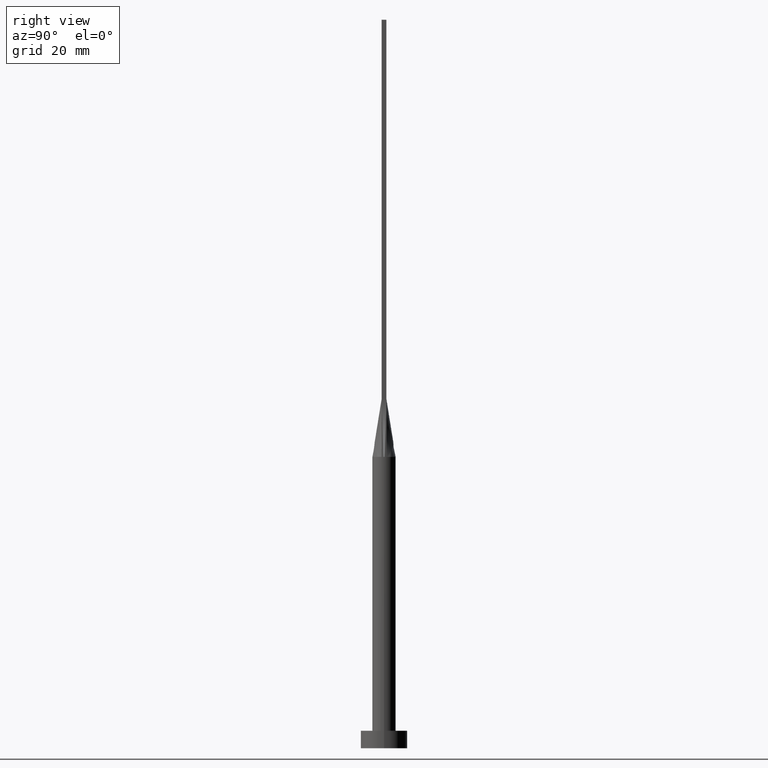
[diagram: clean part render]
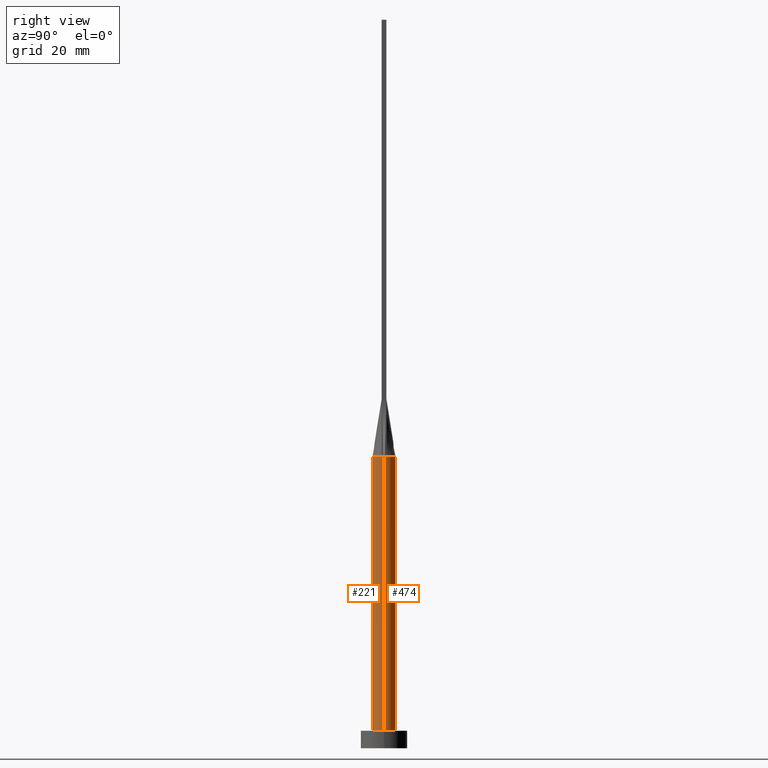
[diagram: same view with one multi-face feature highlighted, each face labeled with its STEP entity id]
A machine part, right view. The highlighted faces form ONE feature: a constant-radius fillet chain: 2 tangent blend faces with common blend radius 2 mm. The faces share edges in the B-rep.
Their STEP definitions:
[1] entity #474 (Cylinder):
#3 = CIRCLE ( 'NONE', #537, 2.000000000000000000 ) ;
#10 = CIRCLE ( 'NONE', #61, 2.000000000000000000 ) ;
#17 = ORIENTED_EDGE ( 'NONE', *, *, #291, .F. ) ;
#32 = CARTESIAN_POINT ( 'NONE',  ( -1.542259513637947999, 1.293837904363075442, 50.00000000000001421 ) ) ;
#33 = CARTESIAN_POINT ( 'NONE',  ( -1.669156890509896796, 1.119033439449084399, 50.00000000000000000 ) ) ;
#37 = CARTESIAN_POINT ( 'NONE',  ( 0.2657394870669761988, 1.999999999999999556, 50.00000000000000711 ) ) ;
#39 = CARTESIAN_POINT ( 'NONE',  ( 1.999683952654101260, 4.637163118916083254E-16, 50.00000000000000000 ) ) ;
#54 = CARTESIAN_POINT ( 'NONE',  ( 2.000000000000000000, 2.449293598294706414E-16, 3.000000000000000000 ) ) ;
#58 = VECTOR ( 'NONE', #288, 1000.000000000000000 ) ;
#61 = AXIS2_PLACEMENT_3D ( 'NONE', #220, #297, #218 ) ;
#66 = VERTEX_POINT ( 'NONE', #188 ) ;
#74 = AXIS2_PLACEMENT_3D ( 'NONE', #528, #128, #446 ) ;
#81 = CARTESIAN_POINT ( 'NONE',  ( 1.949877516600953875, 0.4456865912299994847, 50.00000000000000000 ) ) ;
#83 = CARTESIAN_POINT ( 'NONE',  ( 1.913513237607142647, 0.6040411209768705714, 50.00000000000000711 ) ) ;
#95 = CARTESIAN_POINT ( 'NONE',  ( -1.999683952654101704, -4.787247324473225831E-16, 50.00000000000000000 ) ) ;
#103 = ORIENTED_EDGE ( 'NONE', *, *, #561, .T. ) ;
#128 = DIRECTION ( 'NONE',  ( -0.000000000000000000, -0.000000000000000000, -1.000000000000000000 ) ) ;
#129 = CARTESIAN_POINT ( 'NONE',  ( 1.209404336647714073, 1.609323485403446830, 50.00000000000001421 ) ) ;
#142 = EDGE_CURVE ( 'NONE', #255, #66, #509, .T. ) ;
#153 = CARTESIAN_POINT ( 'NONE',  ( 2.000000000000000000, 2.449293598294706414E-16, 50.00000000000000000 ) ) ;
#173 = EDGE_LOOP ( 'NONE', ( #571, #103, #203, #417, #17, #333 ) ) ;
#188 = CARTESIAN_POINT ( 'NONE',  ( -2.000000000000000000, 0.000000000000000000, 3.000000000000000000 ) ) ;
#201 = VERTEX_POINT ( 'NONE', #54 ) ;
#203 = ORIENTED_EDGE ( 'NONE', *, *, #349, .T. ) ;
#213 = CARTESIAN_POINT ( 'NONE',  ( -1.854458107241758746, 0.7741483657718513101, 50.00000000000000711 ) ) ;
#218 = DIRECTION ( 'NONE',  ( 1.000000000000000000, 0.000000000000000000, 0.000000000000000000 ) ) ;
#219 = DIRECTION ( 'NONE',  ( 1.000000000000000000, 0.000000000000000000, 0.000000000000000000 ) ) ;
#220 = CARTESIAN_POINT ( 'NONE',  ( 0.000000000000000000, 0.000000000000000000, 3.000000000000000000 ) ) ;
#250 = CARTESIAN_POINT ( 'NONE',  ( -2.000000000000000000, 0.000000000000000000, 50.00000000000000000 ) ) ;
#255 = VERTEX_POINT ( 'NONE', #95 ) ;
#258 = CYLINDRICAL_SURFACE ( 'NONE', #74, 2.000000000000000000 ) ;
#262 = CARTESIAN_POINT ( 'NONE',  ( -1.002818635501954381, 1.749193953526918532, 50.00000000000001421 ) ) ;
#264 = LINE ( 'NONE', #153, #387 ) ;
#278 = DIRECTION ( 'NONE',  ( -0.000000000000000000, -0.000000000000000000, -1.000000000000000000 ) ) ;
#288 = DIRECTION ( 'NONE',  ( -0.000000000000000000, -0.000000000000000000, -1.000000000000000000 ) ) ;
#291 = EDGE_CURVE ( 'NONE', #499, #255, #3, .T. ) ;
#294 = CARTESIAN_POINT ( 'NONE',  ( 1.002818635501954603, 1.749193953526918088, 50.00000000000000711 ) ) ;
#297 = DIRECTION ( 'NONE',  ( 0.000000000000000000, 0.000000000000000000, 1.000000000000000000 ) ) ;
#302 = EDGE_CURVE ( 'NONE', #506, #499, #520, .T. ) ;
#324 = AXIS2_PLACEMENT_3D ( 'NONE', #337, #575, #572 ) ;
#333 = ORIENTED_EDGE ( 'NONE', *, *, #302, .F. ) ;
#337 = CARTESIAN_POINT ( 'NONE',  ( 0.000000000000000000, 0.000000000000000000, 50.00000000000000000 ) ) ;
#343 = EDGE_CURVE ( 'NONE', #429, #506, #493, .T. ) ;
#349 = EDGE_CURVE ( 'NONE', #201, #66, #10, .T. ) ;
#381 = CARTESIAN_POINT ( 'NONE',  ( -0.5307032259479420588, 1.945168061822314609, 50.00000000000000000 ) ) ;
#385 = DIRECTION ( 'NONE',  ( 0.000000000000000000, 0.000000000000000000, 1.000000000000000000 ) ) ;
#387 = VECTOR ( 'NONE', #278, 1000.000000000000000 ) ;
#392 = CARTESIAN_POINT ( 'NONE',  ( 1.854458107241759190, 0.7741483657718509770, 50.00000000000000711 ) ) ;
#417 = ORIENTED_EDGE ( 'NONE', *, *, #142, .F. ) ;
#428 = CARTESIAN_POINT ( 'NONE',  ( 0.5307032259479425029, 1.945168061822314165, 50.00000000000001421 ) ) ;
#429 = VERTEX_POINT ( 'NONE', #39 ) ;
#434 = FACE_OUTER_BOUND ( 'NONE', #173, .T. ) ;
#442 = CARTESIAN_POINT ( 'NONE',  ( -1.949896596863728293, 0.4456908869437610776, 50.00000000000000000 ) ) ;
#446 = DIRECTION ( 'NONE',  ( -1.000000000000000000, 0.000000000000000000, 0.000000000000000000 ) ) ;
#471 = CARTESIAN_POINT ( 'NONE',  ( -0.2657394870669756437, 1.999999999999999556, 50.00000000000001421 ) ) ;
#474 = ADVANCED_FACE ( 'NONE', ( #434 ), #258, .T. ) ;
#475 = CARTESIAN_POINT ( 'NONE',  ( -1.209404336647713851, 1.609323485403446830, 50.00000000000000000 ) ) ;
#476 = CARTESIAN_POINT ( 'NONE',  ( -1.913513237607142647, 0.6040411209768712375, 50.00000000000000711 ) ) ;
#478 = CARTESIAN_POINT ( 'NONE',  ( -1.949896596863728293, 0.4456908869437610776, 50.00000000000000000 ) ) ;
#492 = CARTESIAN_POINT ( 'NONE',  ( 1.949877516600953875, 0.4456865912299994847, 50.00000000000000000 ) ) ;
#493 = CIRCLE ( 'NONE', #324, 2.000000000000000000 ) ;
#499 = VERTEX_POINT ( 'NONE', #442 ) ;
#500 = CARTESIAN_POINT ( 'NONE',  ( 0.000000000000000000, 0.000000000000000000, 50.00000000000000000 ) ) ;
#506 = VERTEX_POINT ( 'NONE', #492 ) ;
#509 = LINE ( 'NONE', #250, #58 ) ;
#520 = B_SPLINE_CURVE_WITH_KNOTS ( 'NONE', 3,
 ( #81, #83, #392, #527, #574, #129, #294, #428, #37, #471, #381, #262, #475, #32, #33, #213, #476, #478 ),
 .UNSPECIFIED., .F., .F.,
 ( 4, 2, 2, 2, 2, 2, 2, 2, 4 ),
 ( 0.000000000000000000, 0.1250000000000000000, 0.2500000000000000000, 0.3750000000000000000, 0.5000000000000000000, 0.6250000000000000000, 0.7500000000000000000, 0.8750000000000000000, 1.000000000000000000 ),
 .UNSPECIFIED. ) ;
#527 = CARTESIAN_POINT ( 'NONE',  ( 1.669156890509896352, 1.119033439449084177, 49.99999999999999289 ) ) ;
#528 = CARTESIAN_POINT ( 'NONE',  ( 0.000000000000000000, 0.000000000000000000, 50.00000000000000000 ) ) ;
#537 = AXIS2_PLACEMENT_3D ( 'NONE', #500, #385, #219 ) ;
#561 = EDGE_CURVE ( 'NONE', #429, #201, #264, .T. ) ;
#571 = ORIENTED_EDGE ( 'NONE', *, *, #343, .F. ) ;
#572 = DIRECTION ( 'NONE',  ( 1.000000000000000000, 0.000000000000000000, 0.000000000000000000 ) ) ;
#574 = CARTESIAN_POINT ( 'NONE',  ( 1.542259513637948443, 1.293837904363074998, 50.00000000000000711 ) ) ;
#575 = DIRECTION ( 'NONE',  ( 0.000000000000000000, 0.000000000000000000, 1.000000000000000000 ) ) ;
[2] entity #221 (Cylinder):
#38 = EDGE_CURVE ( 'NONE', #211, #125, #122, .T. ) ;
#39 = CARTESIAN_POINT ( 'NONE',  ( 1.999683952654101260, 4.637163118916083254E-16, 50.00000000000000000 ) ) ;
#54 = CARTESIAN_POINT ( 'NONE',  ( 2.000000000000000000, 2.449293598294706414E-16, 3.000000000000000000 ) ) ;
#58 = VECTOR ( 'NONE', #288, 1000.000000000000000 ) ;
#65 = DIRECTION ( 'NONE',  ( -0.000000000000000000, -0.000000000000000000, -1.000000000000000000 ) ) ;
#66 = VERTEX_POINT ( 'NONE', #188 ) ;
#68 = DIRECTION ( 'NONE',  ( 0.000000000000000000, 0.000000000000000000, 1.000000000000000000 ) ) ;
#75 = ORIENTED_EDGE ( 'NONE', *, *, #367, .T. ) ;
#89 = AXIS2_PLACEMENT_3D ( 'NONE', #235, #101, #548 ) ;
#95 = CARTESIAN_POINT ( 'NONE',  ( -1.999683952654101704, -4.787247324473225831E-16, 50.00000000000000000 ) ) ;
#101 = DIRECTION ( 'NONE',  ( 0.000000000000000000, 0.000000000000000000, 1.000000000000000000 ) ) ;
#102 = DIRECTION ( 'NONE',  ( -1.000000000000000000, 0.000000000000000000, 0.000000000000000000 ) ) ;
#120 = CYLINDRICAL_SURFACE ( 'NONE', #573, 2.000000000000000000 ) ;
#122 = CIRCLE ( 'NONE', #386, 2.000000000000000000 ) ;
#125 = VERTEX_POINT ( 'NONE', #535 ) ;
#131 = CIRCLE ( 'NONE', #89, 2.000000000000000000 ) ;
#136 = CIRCLE ( 'NONE', #176, 2.000000000000000000 ) ;
#142 = EDGE_CURVE ( 'NONE', #255, #66, #509, .T. ) ;
#153 = CARTESIAN_POINT ( 'NONE',  ( 2.000000000000000000, 2.449293598294706414E-16, 50.00000000000000000 ) ) ;
#171 = DIRECTION ( 'NONE',  ( 0.000000000000000000, 0.000000000000000000, 1.000000000000000000 ) ) ;
#176 = AXIS2_PLACEMENT_3D ( 'NONE', #432, #340, #430 ) ;
#177 = EDGE_CURVE ( 'NONE', #125, #429, #215, .T. ) ;
#188 = CARTESIAN_POINT ( 'NONE',  ( -2.000000000000000000, 0.000000000000000000, 3.000000000000000000 ) ) ;
#201 = VERTEX_POINT ( 'NONE', #54 ) ;
#210 = CARTESIAN_POINT ( 'NONE',  ( -1.949888833174281633, -0.4456892479726881628, 50.00000000000000000 ) ) ;
#211 = VERTEX_POINT ( 'NONE', #210 ) ;
#215 = CIRCLE ( 'NONE', #273, 2.000000000000000000 ) ;
#221 = ADVANCED_FACE ( 'NONE', ( #498 ), #120, .T. ) ;
#235 = CARTESIAN_POINT ( 'NONE',  ( 0.000000000000000000, 0.000000000000000000, 50.00000000000000000 ) ) ;
#250 = CARTESIAN_POINT ( 'NONE',  ( -2.000000000000000000, 0.000000000000000000, 50.00000000000000000 ) ) ;
#255 = VERTEX_POINT ( 'NONE', #95 ) ;
#264 = LINE ( 'NONE', #153, #387 ) ;
#273 = AXIS2_PLACEMENT_3D ( 'NONE', #281, #171, #319 ) ;
#278 = DIRECTION ( 'NONE',  ( -0.000000000000000000, -0.000000000000000000, -1.000000000000000000 ) ) ;
#281 = CARTESIAN_POINT ( 'NONE',  ( 0.000000000000000000, 0.000000000000000000, 50.00000000000000000 ) ) ;
#282 = CARTESIAN_POINT ( 'NONE',  ( 0.000000000000000000, 0.000000000000000000, 50.00000000000000000 ) ) ;
#288 = DIRECTION ( 'NONE',  ( -0.000000000000000000, -0.000000000000000000, -1.000000000000000000 ) ) ;
#289 = ORIENTED_EDGE ( 'NONE', *, *, #561, .F. ) ;
#316 = ORIENTED_EDGE ( 'NONE', *, *, #142, .T. ) ;
#319 = DIRECTION ( 'NONE',  ( 1.000000000000000000, -9.769962616701377556E-15, 0.000000000000000000 ) ) ;
#340 = DIRECTION ( 'NONE',  ( 0.000000000000000000, 0.000000000000000000, 1.000000000000000000 ) ) ;
#367 = EDGE_CURVE ( 'NONE', #66, #201, #136, .T. ) ;
#386 = AXIS2_PLACEMENT_3D ( 'NONE', #461, #68, #419 ) ;
#387 = VECTOR ( 'NONE', #278, 1000.000000000000000 ) ;
#419 = DIRECTION ( 'NONE',  ( 1.000000000000000000, 0.000000000000000000, 0.000000000000000000 ) ) ;
#426 = ORIENTED_EDGE ( 'NONE', *, *, #38, .F. ) ;
#429 = VERTEX_POINT ( 'NONE', #39 ) ;
#430 = DIRECTION ( 'NONE',  ( 1.000000000000000000, 0.000000000000000000, 0.000000000000000000 ) ) ;
#432 = CARTESIAN_POINT ( 'NONE',  ( 0.000000000000000000, 0.000000000000000000, 3.000000000000000000 ) ) ;
#459 = EDGE_LOOP ( 'NONE', ( #289, #514, #426, #523, #316, #75 ) ) ;
#461 = CARTESIAN_POINT ( 'NONE',  ( 0.000000000000000000, 0.000000000000000000, 50.00000000000000000 ) ) ;
#498 = FACE_OUTER_BOUND ( 'NONE', #459, .T. ) ;
#509 = LINE ( 'NONE', #250, #58 ) ;
#514 = ORIENTED_EDGE ( 'NONE', *, *, #177, .F. ) ;
#523 = ORIENTED_EDGE ( 'NONE', *, *, #581, .F. ) ;
#535 = CARTESIAN_POINT ( 'NONE',  ( 1.949907982895221048, -0.4456935569447296186, 50.00000000000000000 ) ) ;
#548 = DIRECTION ( 'NONE',  ( 1.000000000000000000, 0.000000000000000000, 0.000000000000000000 ) ) ;
#561 = EDGE_CURVE ( 'NONE', #429, #201, #264, .T. ) ;
#573 = AXIS2_PLACEMENT_3D ( 'NONE', #282, #65, #102 ) ;
#581 = EDGE_CURVE ( 'NONE', #255, #211, #131, .T. ) ;